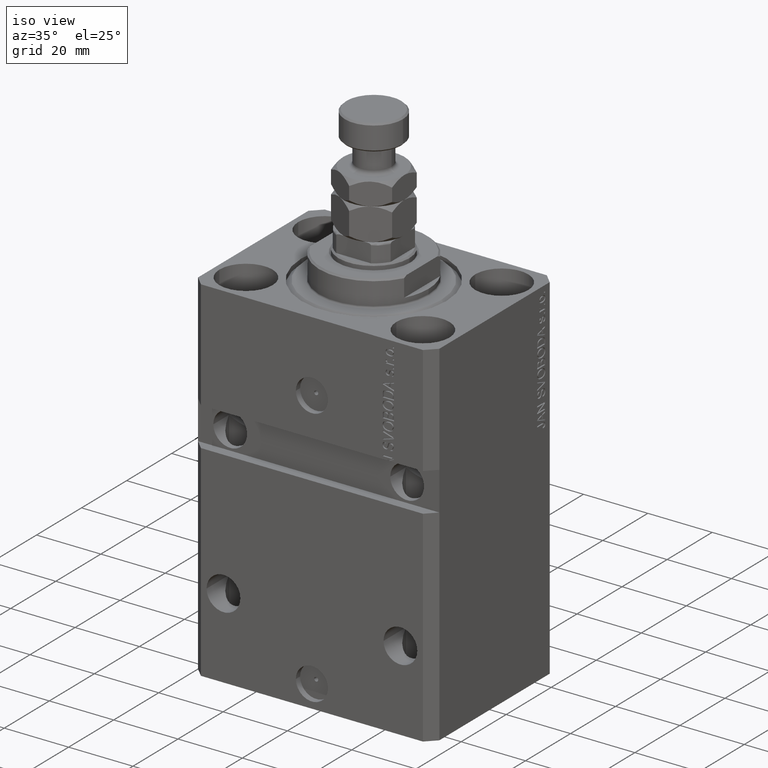
[diagram: clean part render]
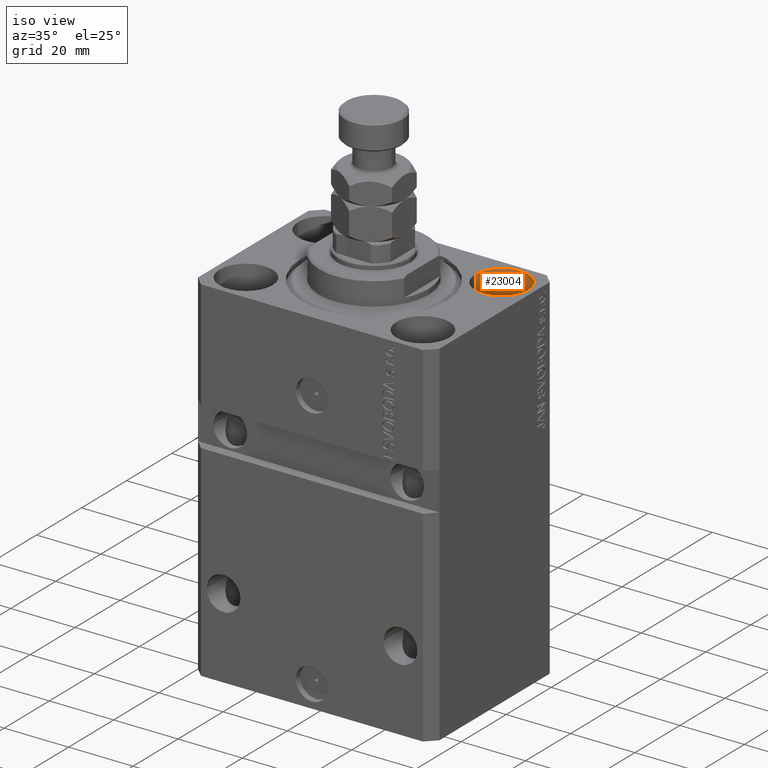
[diagram: same view with one face highlighted and labeled with its STEP entity id]
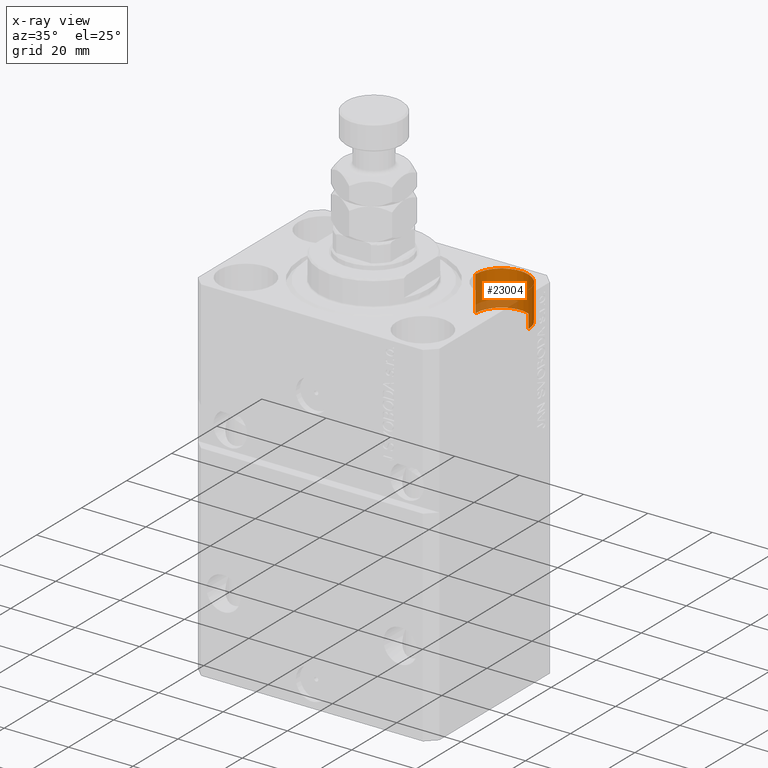
[diagram: x-ray of the same camera — body ghosted, the highlighted face saturated]
A machine part, iso view. The second image highlights one B-rep face of the part: STEP entity #23004.
The next image is the same camera in x-ray: the body ghosted, the highlighted face saturated — about 16% of this face is hidden behind the body in this view.
In plain terms, the highlighted cylindrical surface (edge-blend (fillet) strip) has radius 8.25 mm, axis along (0, 0, 1).
Its self-contained STEP definition (entity closure, byte-faithful):
#888 = CARTESIAN_POINT ( 'NONE',  ( 35.74999999999999289, 17.50000000000001066, -11.00000000000000000 ) ) ;
#5384 = DIRECTION ( 'NONE',  ( -0.000000000000000000, -0.000000000000000000, 1.000000000000000000 ) ) ;
#5482 = EDGE_CURVE ( 'NONE', #31105, #22339, #9122, .T. ) ;
#6741 = DIRECTION ( 'NONE',  ( 1.000000000000000000, 0.000000000000000000, 0.000000000000000000 ) ) ;
#6830 = AXIS2_PLACEMENT_3D ( 'NONE', #22704, #45007, #8091 ) ;
#8091 = DIRECTION ( 'NONE',  ( 1.000000000000000000, 0.000000000000000000, 0.000000000000000000 ) ) ;
#9122 = LINE ( 'NONE', #44031, #25317 ) ;
#9286 = DIRECTION ( 'NONE',  ( 0.000000000000000000, 0.000000000000000000, 1.000000000000000000 ) ) ;
#11572 = FACE_OUTER_BOUND ( 'NONE', #27018, .T. ) ;
#13012 = ORIENTED_EDGE ( 'NONE', *, *, #36029, .F. ) ;
#13155 = CARTESIAN_POINT ( 'NONE',  ( 19.25000000000000000, 17.50000000000001066, -11.00000000000000000 ) ) ;
#14829 = CIRCLE ( 'NONE', #38565, 8.249999999999992895 ) ;
#14895 = ORIENTED_EDGE ( 'NONE', *, *, #27522, .T. ) ;
#17203 = CARTESIAN_POINT ( 'NONE',  ( 27.49999999999999645, 17.50000000000001066, -11.00000000000000000 ) ) ;
#22339 = VERTEX_POINT ( 'NONE', #38786 ) ;
#22459 = ORIENTED_EDGE ( 'NONE', *, *, #24407, .F. ) ;
#22704 = CARTESIAN_POINT ( 'NONE',  ( 27.49999999999999645, 17.50000000000001066, -11.00000000000000000 ) ) ;
#22720 = VERTEX_POINT ( 'NONE', #33180 ) ;
#23004 = ADVANCED_FACE ( 'NONE', ( #11572 ), #29894, .F. ) ;
#23626 = CIRCLE ( 'NONE', #41045, 8.249999999999992895 ) ;
#24407 = EDGE_CURVE ( 'NONE', #31105, #44786, #14829, .T. ) ;
#25079 = DIRECTION ( 'NONE',  ( 0.000000000000000000, 0.000000000000000000, 1.000000000000000000 ) ) ;
#25317 = VECTOR ( 'NONE', #5384, 1000.000000000000000 ) ;
#27018 = EDGE_LOOP ( 'NONE', ( #13012, #22459, #36875, #14895 ) ) ;
#27522 = EDGE_CURVE ( 'NONE', #22339, #22720, #23626, .T. ) ;
#28547 = VECTOR ( 'NONE', #42898, 1000.000000000000000 ) ;
#29894 = CYLINDRICAL_SURFACE ( 'NONE', #6830, 8.249999999999992895 ) ;
#31105 = VERTEX_POINT ( 'NONE', #888 ) ;
#33005 = CARTESIAN_POINT ( 'NONE',  ( 27.49999999999999645, 17.50000000000001066, 0.000000000000000000 ) ) ;
#33180 = CARTESIAN_POINT ( 'NONE',  ( 19.25000000000000000, 17.50000000000001066, 0.000000000000000000 ) ) ;
#36029 = EDGE_CURVE ( 'NONE', #44786, #22720, #46857, .T. ) ;
#36031 = DIRECTION ( 'NONE',  ( 1.000000000000000000, 0.000000000000000000, 0.000000000000000000 ) ) ;
#36875 = ORIENTED_EDGE ( 'NONE', *, *, #5482, .T. ) ;
#38565 = AXIS2_PLACEMENT_3D ( 'NONE', #17203, #9286, #36031 ) ;
#38786 = CARTESIAN_POINT ( 'NONE',  ( 35.74999999999999289, 17.50000000000001066, 0.000000000000000000 ) ) ;
#40334 = CARTESIAN_POINT ( 'NONE',  ( 19.25000000000000000, 17.50000000000001066, -11.00000000000000000 ) ) ;
#41045 = AXIS2_PLACEMENT_3D ( 'NONE', #33005, #25079, #6741 ) ;
#42898 = DIRECTION ( 'NONE',  ( -0.000000000000000000, -0.000000000000000000, 1.000000000000000000 ) ) ;
#44031 = CARTESIAN_POINT ( 'NONE',  ( 35.74999999999999289, 17.50000000000001066, -11.00000000000000000 ) ) ;
#44786 = VERTEX_POINT ( 'NONE', #40334 ) ;
#45007 = DIRECTION ( 'NONE',  ( -0.000000000000000000, -0.000000000000000000, 1.000000000000000000 ) ) ;
#46857 = LINE ( 'NONE', #13155, #28547 ) ;